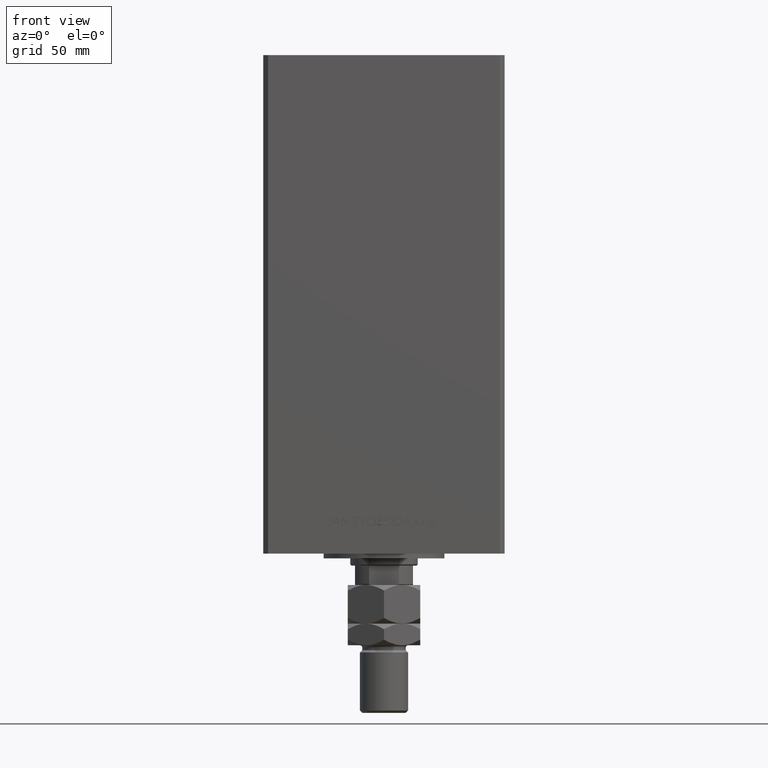
[diagram: clean part render]
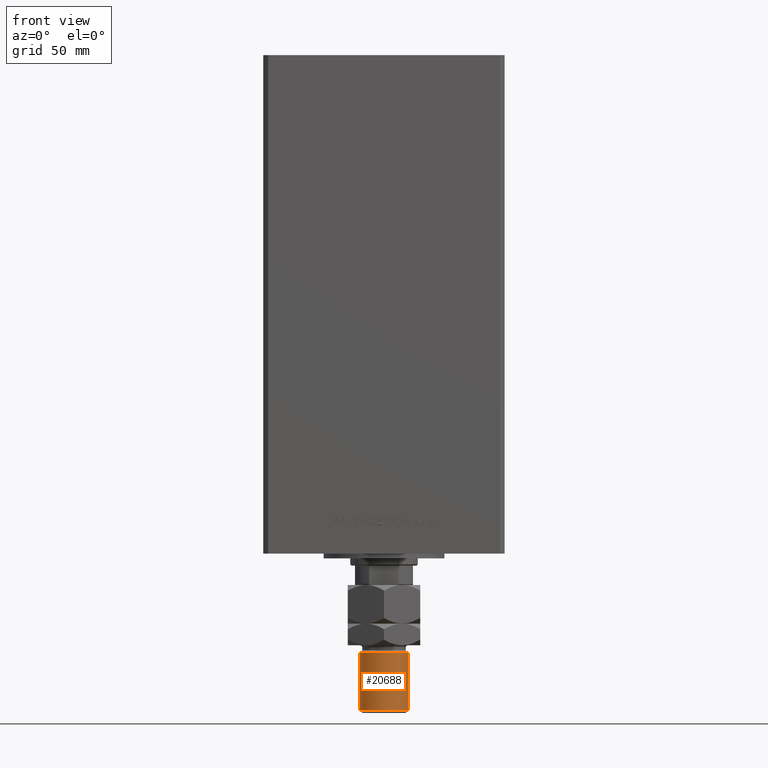
[diagram: same view with one face highlighted and labeled with its STEP entity id]
A machine part, front view. The second image highlights one B-rep face of the part: STEP entity #20688.
In plain terms, the highlighted cylindrical surface (edge-blend (fillet) strip) has radius 10 mm, axis along (0, -0, 1).
Its self-contained STEP definition (entity closure, byte-faithful):
#5294 = VERTEX_POINT ( 'NONE', #5813 ) ;
#5513 = CARTESIAN_POINT ( 'NONE',  ( 0.000000000000000000, 0.000000000000000000, 52.00000000000004974 ) ) ;
#5813 = CARTESIAN_POINT ( 'NONE',  ( 10.00000000000000000, 1.224646799147353059E-15, 52.00000000000004974 ) ) ;
#6498 = DIRECTION ( 'NONE',  ( 1.000000000000000000, 0.000000000000000000, 0.000000000000000000 ) ) ;
#6634 = CARTESIAN_POINT ( 'NONE',  ( 0.000000000000000000, 0.000000000000000000, 53.00000000000000711 ) ) ;
#6774 = DIRECTION ( 'NONE',  ( -0.000000000000000000, -0.000000000000000000, -1.000000000000000000 ) ) ;
#7393 = DIRECTION ( 'NONE',  ( -0.000000000000000000, -0.000000000000000000, -1.000000000000000000 ) ) ;
#7963 = AXIS2_PLACEMENT_3D ( 'NONE', #6634, #7393, #50529 ) ;
#10102 = DIRECTION ( 'NONE',  ( 0.000000000000000000, 0.000000000000000000, -1.000000000000000000 ) ) ;
#11893 = EDGE_CURVE ( 'NONE', #5294, #25098, #26356, .T. ) ;
#13164 = ORIENTED_EDGE ( 'NONE', *, *, #26301, .T. ) ;
#16064 = CARTESIAN_POINT ( 'NONE',  ( 10.00000000000000000, 1.224646799147353059E-15, 53.00000000000000711 ) ) ;
#19232 = EDGE_CURVE ( 'NONE', #25098, #47652, #34505, .T. ) ;
#20688 = ADVANCED_FACE ( 'NONE', ( #41818 ), #46666, .T. ) ;
#21375 = CARTESIAN_POINT ( 'NONE',  ( -10.00000000000000000, 0.000000000000000000, 52.00000000000004974 ) ) ;
#22729 = ORIENTED_EDGE ( 'NONE', *, *, #26771, .F. ) ;
#22965 = CARTESIAN_POINT ( 'NONE',  ( -10.00000000000000000, 0.000000000000000000, 53.00000000000000711 ) ) ;
#23223 = DIRECTION ( 'NONE',  ( 1.000000000000000000, 0.000000000000000000, 0.000000000000000000 ) ) ;
#23296 = DIRECTION ( 'NONE',  ( -0.000000000000000000, -0.000000000000000000, -1.000000000000000000 ) ) ;
#23711 = DIRECTION ( 'NONE',  ( -0.000000000000000000, -0.000000000000000000, 1.000000000000000000 ) ) ;
#23787 = VECTOR ( 'NONE', #23296, 1000.000000000000000 ) ;
#25098 = VERTEX_POINT ( 'NONE', #21375 ) ;
#26301 = EDGE_CURVE ( 'NONE', #47652, #27381, #29501, .T. ) ;
#26356 = CIRCLE ( 'NONE', #39458, 10.00000000000000000 ) ;
#26771 = EDGE_CURVE ( 'NONE', #5294, #27381, #27131, .T. ) ;
#27131 = LINE ( 'NONE', #16064, #23787 ) ;
#27381 = VERTEX_POINT ( 'NONE', #41094 ) ;
#29501 = CIRCLE ( 'NONE', #38545, 10.00000000000000000 ) ;
#31444 = ORIENTED_EDGE ( 'NONE', *, *, #11893, .T. ) ;
#34505 = LINE ( 'NONE', #22965, #49777 ) ;
#38545 = AXIS2_PLACEMENT_3D ( 'NONE', #42473, #23711, #23223 ) ;
#38896 = CARTESIAN_POINT ( 'NONE',  ( -10.00000000000000000, 0.000000000000000000, 28.00000000000002487 ) ) ;
#39458 = AXIS2_PLACEMENT_3D ( 'NONE', #5513, #10102, #6498 ) ;
#41094 = CARTESIAN_POINT ( 'NONE',  ( 10.00000000000000000, 1.224646799147353059E-15, 28.00000000000002487 ) ) ;
#41818 = FACE_OUTER_BOUND ( 'NONE', #42291, .T. ) ;
#42291 = EDGE_LOOP ( 'NONE', ( #22729, #31444, #43414, #13164 ) ) ;
#42473 = CARTESIAN_POINT ( 'NONE',  ( 0.000000000000000000, 0.000000000000000000, 28.00000000000002487 ) ) ;
#43414 = ORIENTED_EDGE ( 'NONE', *, *, #19232, .T. ) ;
#46666 = CYLINDRICAL_SURFACE ( 'NONE', #7963, 10.00000000000000000 ) ;
#47652 = VERTEX_POINT ( 'NONE', #38896 ) ;
#49777 = VECTOR ( 'NONE', #6774, 1000.000000000000000 ) ;
#50529 = DIRECTION ( 'NONE',  ( -1.000000000000000000, 0.000000000000000000, 0.000000000000000000 ) ) ;